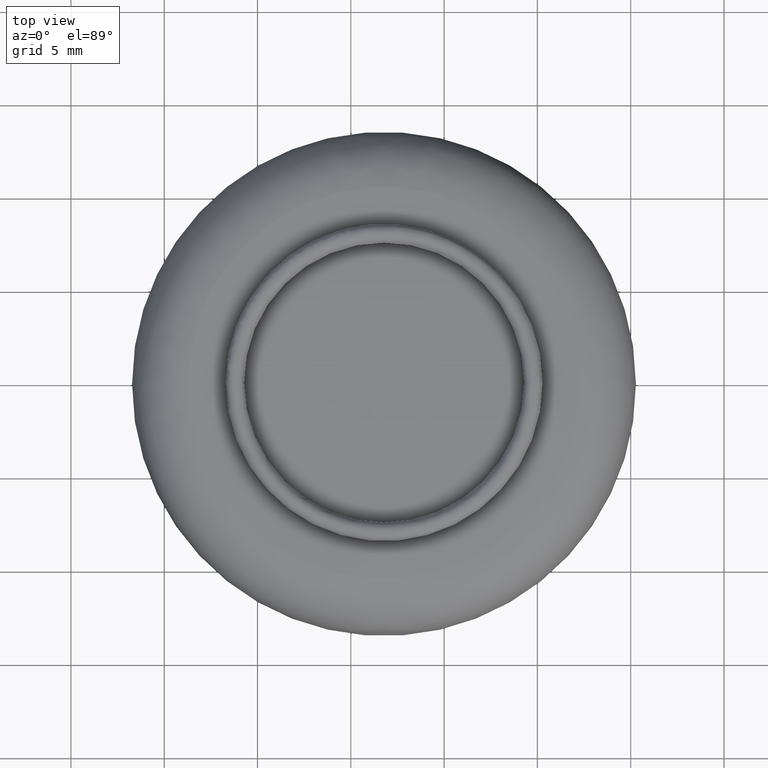
[diagram: clean part render]
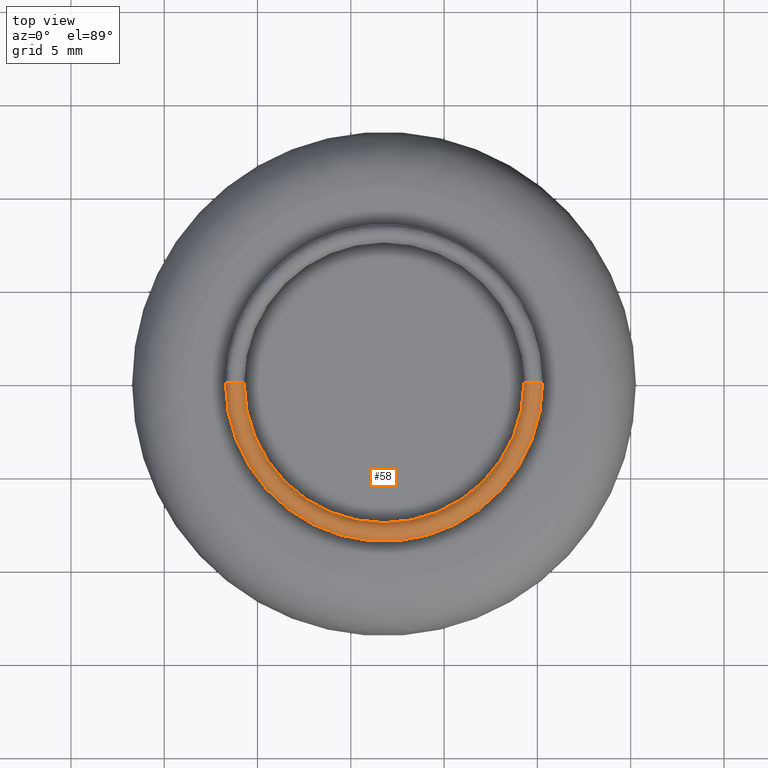
[diagram: same view with one face highlighted and labeled with its STEP entity id]
A machine part, top view. The second image highlights one B-rep face of the part: STEP entity #58.
In plain terms, the highlighted face is a freeform B-spline surface patch.
Its self-contained STEP definition (entity closure, byte-faithful):
#58=ADVANCED_FACE('',(#249),#248,.T.);
#248=( BOUNDED_SURFACE() B_SPLINE_SURFACE( 2,2,((#486,#487,#488,#489,#490),(#491,#492,#493,#494,#495),(#496,#497,#498,#499,#500),(#501,#502,#503,#504,#505),(#506,#507,#508,#509,#510)), .UNSPECIFIED.,.F.,.F.,.F.) B_SPLINE_SURFACE_WITH_KNOTS((3,2,3),(3,2,3),(0.00000000000E+000,5.00000000000E-001,1.00000000000E+000),(0.00000000000E+000,5.00000000000E-001,1.00000000000E+000), .UNSPECIFIED. ) GEOMETRIC_REPRESENTATION_ITEM() RATIONAL_B_SPLINE_SURFACE(((1.00000000000E+000,7.07106781187E-001,1.00000000000E+000,7.07106781187E-001,1.00000000000E+000),(7.07106781187E-001,5.00000000000E-001,7.07106781187E-001,5.00000000000E-001,7.07106781187E-001),(1.00000000000E+000,7.07106781187E-001,1.00000000000E+000,7.07106781187E-001,1.00000000000E+000),(7.07106781187E-001,5.00000000000E-001,7.07106781187E-001,5.00000000000E-001,7.07106781187E-001),(1.00000000000E+000,7.07106781187E-001,1.00000000000E+000,7.07106781187E-001,1.00000000000E+000))) REPRESENTATION_ITEM('') SURFACE() );
#249=FACE_OUTER_BOUND('',#511,.T.);
#486=CARTESIAN_POINT('',(2.84278069758E+002,-9.18454765367E-016,2.72237988893E+002));
#487=CARTESIAN_POINT('',(2.84278069758E+002,-9.18454765367E-016,2.72737988893E+002));
#488=CARTESIAN_POINT('',(2.84778069758E+002,-9.79685083058E-016,2.72737988893E+002));
#489=CARTESIAN_POINT('',(2.85278069758E+002,-1.04091540075E-015,2.72737988893E+002));
#490=CARTESIAN_POINT('',(2.85278069758E+002,-1.04091540075E-015,2.72237988893E+002));
#491=CARTESIAN_POINT('',(2.84278069758E+002,-7.50000000000E+000,2.72237988893E+002));
#492=CARTESIAN_POINT('',(2.84278069758E+002,-7.50000000000E+000,2.72737988893E+002));
#493=CARTESIAN_POINT('',(2.84778069758E+002,-8.00000000000E+000,2.72737988893E+002));
#494=CARTESIAN_POINT('',(2.85278069758E+002,-8.50000000000E+000,2.72737988893E+002));
#495=CARTESIAN_POINT('',(2.85278069758E+002,-8.50000000000E+000,2.72237988893E+002));
#496=CARTESIAN_POINT('',(2.76778069758E+002,-7.50000000000E+000,2.72237988893E+002));
#497=CARTESIAN_POINT('',(2.76778069758E+002,-7.50000000000E+000,2.72737988893E+002));
#498=CARTESIAN_POINT('',(2.76778069758E+002,-8.00000000000E+000,2.72737988893E+002));
#499=CARTESIAN_POINT('',(2.76778069758E+002,-8.50000000000E+000,2.72737988893E+002));
#500=CARTESIAN_POINT('',(2.76778069758E+002,-8.50000000000E+000,2.72237988893E+002));
#501=CARTESIAN_POINT('',(2.69278069758E+002,-7.50000000000E+000,2.72237988893E+002));
#502=CARTESIAN_POINT('',(2.69278069758E+002,-7.50000000000E+000,2.72737988893E+002));
#503=CARTESIAN_POINT('',(2.68778069758E+002,-8.00000000000E+000,2.72737988893E+002));
#504=CARTESIAN_POINT('',(2.68278069758E+002,-8.50000000000E+000,2.72737988893E+002));
#505=CARTESIAN_POINT('',(2.68278069758E+002,-8.50000000000E+000,2.72237988893E+002));
#506=CARTESIAN_POINT('',(2.69278069758E+002,-3.03339937313E-020,2.72237988893E+002));
#507=CARTESIAN_POINT('',(2.69278069758E+002,-3.03339937323E-020,2.72737988893E+002));
#508=CARTESIAN_POINT('',(2.68778069758E+002,-3.23562599766E-020,2.72737988893E+002));
#509=CARTESIAN_POINT('',(2.68278069758E+002,-3.43785262323E-020,2.72737988893E+002));
#510=CARTESIAN_POINT('',(2.68278069758E+002,-3.43785262287E-020,2.72237988893E+002));
#511=EDGE_LOOP('',(#626,#627,#628,#629));
#626=ORIENTED_EDGE('',*,*,#687,.F.);
#627=ORIENTED_EDGE('',*,*,#688,.F.);
#628=ORIENTED_EDGE('',*,*,#689,.T.);
#629=ORIENTED_EDGE('',*,*,#690,.T.);
#687=EDGE_CURVE('',#925,#924,#944,.T.);
#688=EDGE_CURVE('',#950,#925,#951,.T.);
#689=EDGE_CURVE('',#950,#957,#958,.T.);
#690=EDGE_CURVE('',#957,#924,#964,.T.);
#924=VERTEX_POINT('',#1148);
#925=VERTEX_POINT('',#1149);
#944=CIRCLE('',#1161,8.50000000000E+000);
#950=VERTEX_POINT('',#1162);
#951=(BOUNDED_CURVE() B_SPLINE_CURVE(2,(#1163,#1164,#1165,#1166,#1167),.UNSPECIFIED.,.F.,.F.) B_SPLINE_CURVE_WITH_KNOTS((3,2,3),(0.00000000000E+000,5.00000000000E-001,1.00000000000E+000),.UNSPECIFIED.) CURVE() GEOMETRIC_REPRESENTATION_ITEM() RATIONAL_B_SPLINE_CURVE((1.00000000000E+000,7.07106781187E-001,1.00000000000E+000,7.07106781187E-001,1.00000000000E+000)) REPRESENTATION_ITEM('') );
#957=VERTEX_POINT('',#1168);
#958=CIRCLE('',#1172,7.50000000000E+000);
#964=(BOUNDED_CURVE() B_SPLINE_CURVE(2,(#1173,#1174,#1175,#1176,#1177),.UNSPECIFIED.,.F.,.F.) B_SPLINE_CURVE_WITH_KNOTS((3,2,3),(0.00000000000E+000,5.00000000000E-001,1.00000000000E+000),.UNSPECIFIED.) CURVE() GEOMETRIC_REPRESENTATION_ITEM() RATIONAL_B_SPLINE_CURVE((7.50000000000E-001,5.30330085890E-001,7.50000000000E-001,5.30330085890E-001,7.50000000000E-001)) REPRESENTATION_ITEM('') );
#1148=CARTESIAN_POINT('',(2.68278069758E+002,0.00000000000E+000,2.72237988893E+002));
#1149=CARTESIAN_POINT('',(2.85278069758E+002,8.88178419700E-016,2.72237988893E+002));
#1158=CARTESIAN_POINT('',(2.76778069758E+002,0.00000000000E+000,2.72237988893E+002));
#1159=DIRECTION('',(-0.00000000000E+000,0.00000000000E+000,-1.00000000000E+000));
#1160=DIRECTION('',(-1.00000000000E+000,-1.22460635382E-016,0.00000000000E+000));
#1161=AXIS2_PLACEMENT_3D('',#1158,#1159,#1160);
#1162=CARTESIAN_POINT('',(2.84278069758E+002,5.92118946467E-016,2.72237988893E+002));
#1163=CARTESIAN_POINT('',(2.84278069758E+002,-9.18454765367E-016,2.72237988893E+002));
#1164=CARTESIAN_POINT('',(2.84278069758E+002,-9.18454765367E-016,2.72737988893E+002));
#1165=CARTESIAN_POINT('',(2.84778069758E+002,-9.79685083058E-016,2.72737988893E+002));
#1166=CARTESIAN_POINT('',(2.85278069758E+002,-1.04091540075E-015,2.72737988893E+002));
#1167=CARTESIAN_POINT('',(2.85278069758E+002,-1.04091540075E-015,2.72237988893E+002));
#1168=CARTESIAN_POINT('',(2.69278069758E+002,0.00000000000E+000,2.72237988893E+002));
#1169=CARTESIAN_POINT('',(2.76778069758E+002,0.00000000000E+000,2.72237988893E+002));
#1170=DIRECTION('',(-0.00000000000E+000,0.00000000000E+000,-1.00000000000E+000));
#1171=DIRECTION('',(-1.00000000000E+000,-1.22460635382E-016,0.00000000000E+000));
#1172=AXIS2_PLACEMENT_3D('',#1169,#1170,#1171);
#1173=CARTESIAN_POINT('',(2.69278069758E+002,1.48029736617E-015,2.72237988893E+002));
#1174=CARTESIAN_POINT('',(2.69278069758E+002,8.37382644631E-016,2.72737988893E+002));
#1175=CARTESIAN_POINT('',(2.68778069758E+002,1.48029736617E-015,2.72737988893E+002));
#1176=CARTESIAN_POINT('',(2.68278069758E+002,1.25607396695E-015,2.72737988893E+002));
#1177=CARTESIAN_POINT('',(2.68278069758E+002,1.48029736617E-015,2.72237988893E+002));